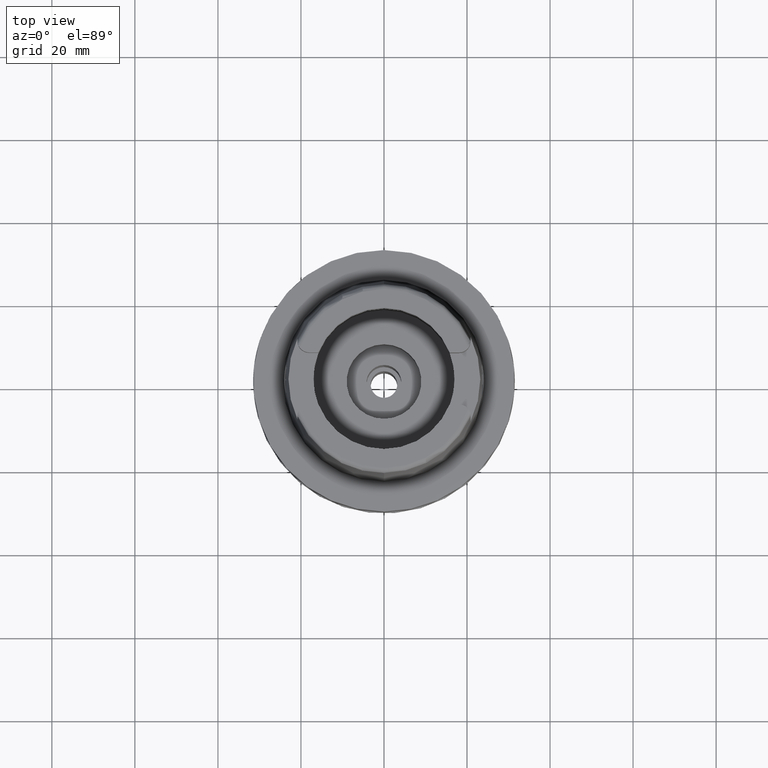
[diagram: clean part render]
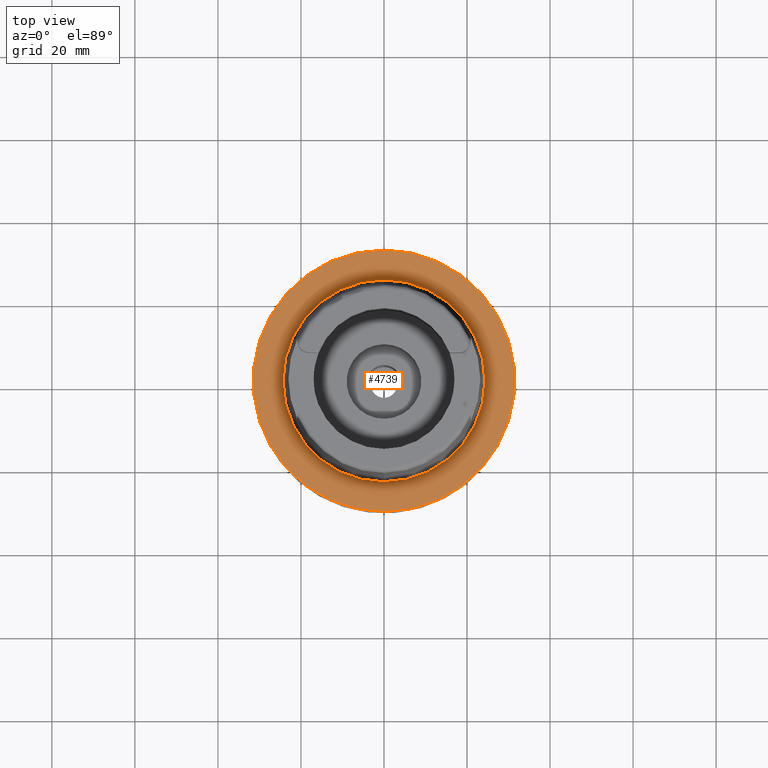
[diagram: same view with one face highlighted and labeled with its STEP entity id]
A machine part, top view. The second image highlights one B-rep face of the part: STEP entity #4739.
In plain terms, the highlighted planar face has unit normal (0, 0, 1).
Its self-contained STEP definition (entity closure, byte-faithful):
#250 = DIRECTION ( 'NONE',  ( 0.0000000000000000000, -1.000000000000000000, 0.0000000000000000000 ) ) ;
#336 = DIRECTION ( 'NONE',  ( 0.0000000000000000000, 0.0000000000000000000, -1.000000000000000000 ) ) ;
#362 = CARTESIAN_POINT ( 'NONE',  ( 0.0000000000000000000, 0.0000000000000000000, -6.821210263297000155E-13 ) ) ;
#428 = VERTEX_POINT ( 'NONE', #2047 ) ;
#481 = AXIS2_PLACEMENT_3D ( 'NONE', #3220, #336, #250 ) ;
#596 = EDGE_CURVE ( 'NONE', #428, #1661, #2481, .T. ) ;
#597 = AXIS2_PLACEMENT_3D ( 'NONE', #4452, #4813, #3972 ) ;
#617 = EDGE_CURVE ( 'NONE', #2436, #622, #1435, .T. ) ;
#622 = VERTEX_POINT ( 'NONE', #1113 ) ;
#645 = ORIENTED_EDGE ( 'NONE', *, *, #5307, .F. ) ;
#990 = EDGE_CURVE ( 'NONE', #1661, #428, #3307, .T. ) ;
#1083 = PLANE ( 'NONE',  #597 ) ;
#1113 = CARTESIAN_POINT ( 'NONE',  ( 0.0000000000000000000, 31.50000000000000000, 0.0000000000000000000 ) ) ;
#1435 = CIRCLE ( 'NONE', #481, 31.50000000000000000 ) ;
#1635 = CIRCLE ( 'NONE', #2496, 31.50000000000000000 ) ;
#1661 = VERTEX_POINT ( 'NONE', #2376 ) ;
#1949 = CARTESIAN_POINT ( 'NONE',  ( 0.0000000000000000000, 0.0000000000000000000, -6.821210263297000155E-13 ) ) ;
#2047 = CARTESIAN_POINT ( 'NONE',  ( 0.0000000000000000000, -24.31503482328999866, -3.801403636316999971E-13 ) ) ;
#2089 = DIRECTION ( 'NONE',  ( 0.0000000000000000000, 0.0000000000000000000, -1.000000000000000000 ) ) ;
#2254 = FACE_OUTER_BOUND ( 'NONE', #5282, .T. ) ;
#2336 = FACE_BOUND ( 'NONE', #3700, .T. ) ;
#2376 = CARTESIAN_POINT ( 'NONE',  ( 0.0000000000000000000, 24.31503482328999866, -6.821210263297000155E-13 ) ) ;
#2436 = VERTEX_POINT ( 'NONE', #2464 ) ;
#2464 = CARTESIAN_POINT ( 'NONE',  ( 0.0000000000000000000, -31.50000000000000000, 0.0000000000000000000 ) ) ;
#2481 = CIRCLE ( 'NONE', #5065, 24.31503482328999866 ) ;
#2496 = AXIS2_PLACEMENT_3D ( 'NONE', #2960, #2089, #4665 ) ;
#2907 = ORIENTED_EDGE ( 'NONE', *, *, #596, .F. ) ;
#2960 = CARTESIAN_POINT ( 'NONE',  ( 0.0000000000000000000, 0.0000000000000000000, 0.0000000000000000000 ) ) ;
#3048 = AXIS2_PLACEMENT_3D ( 'NONE', #1949, #4554, #4471 ) ;
#3186 = DIRECTION ( 'NONE',  ( 0.0000000000000000000, 0.0000000000000000000, 1.000000000000000000 ) ) ;
#3220 = CARTESIAN_POINT ( 'NONE',  ( 0.0000000000000000000, 0.0000000000000000000, 0.0000000000000000000 ) ) ;
#3307 = CIRCLE ( 'NONE', #3048, 24.31503482328999866 ) ;
#3700 = EDGE_LOOP ( 'NONE', ( #3942, #2907 ) ) ;
#3942 = ORIENTED_EDGE ( 'NONE', *, *, #990, .F. ) ;
#3972 = DIRECTION ( 'NONE',  ( 1.000000000000000000, 0.0000000000000000000, 0.0000000000000000000 ) ) ;
#4452 = CARTESIAN_POINT ( 'NONE',  ( 0.0000000000000000000, 0.0000000000000000000, 0.0000000000000000000 ) ) ;
#4471 = DIRECTION ( 'NONE',  ( 0.0000000000000000000, 1.000000000000000000, 0.0000000000000000000 ) ) ;
#4506 = DIRECTION ( 'NONE',  ( 0.0000000000000000000, -1.000000000000000000, 0.0000000000000000000 ) ) ;
#4554 = DIRECTION ( 'NONE',  ( 0.0000000000000000000, 0.0000000000000000000, 1.000000000000000000 ) ) ;
#4665 = DIRECTION ( 'NONE',  ( 0.0000000000000000000, 1.000000000000000000, 0.0000000000000000000 ) ) ;
#4739 = ADVANCED_FACE ( 'NONE', ( #2254, #2336 ), #1083, .T. ) ;
#4813 = DIRECTION ( 'NONE',  ( 0.0000000000000000000, 0.0000000000000000000, 1.000000000000000000 ) ) ;
#5065 = AXIS2_PLACEMENT_3D ( 'NONE', #362, #3186, #4506 ) ;
#5282 = EDGE_LOOP ( 'NONE', ( #645, #5437 ) ) ;
#5307 = EDGE_CURVE ( 'NONE', #622, #2436, #1635, .T. ) ;
#5437 = ORIENTED_EDGE ( 'NONE', *, *, #617, .F. ) ;